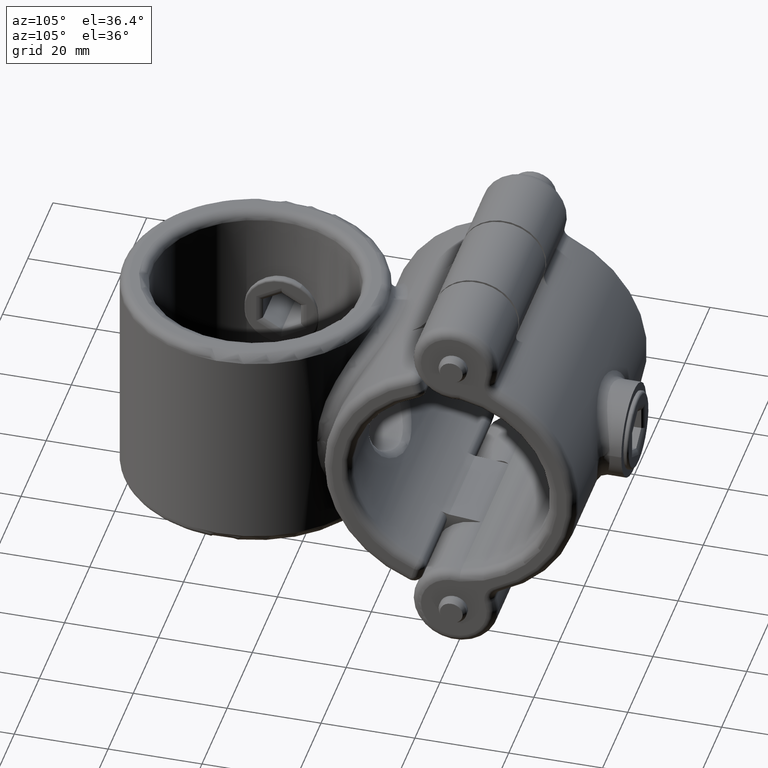
[diagram: clean part render]
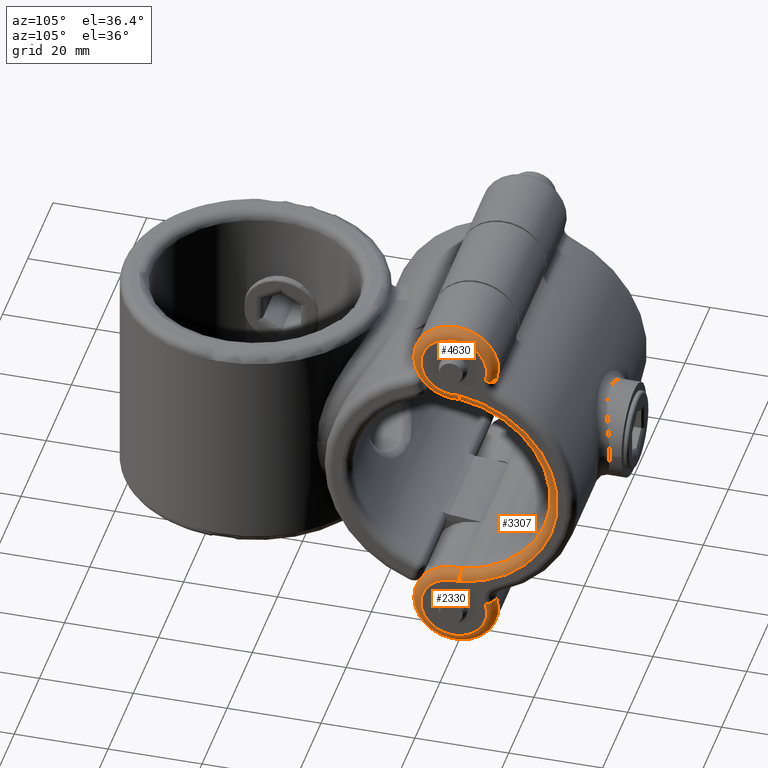
[diagram: same view with one multi-face feature highlighted, each face labeled with its STEP entity id]
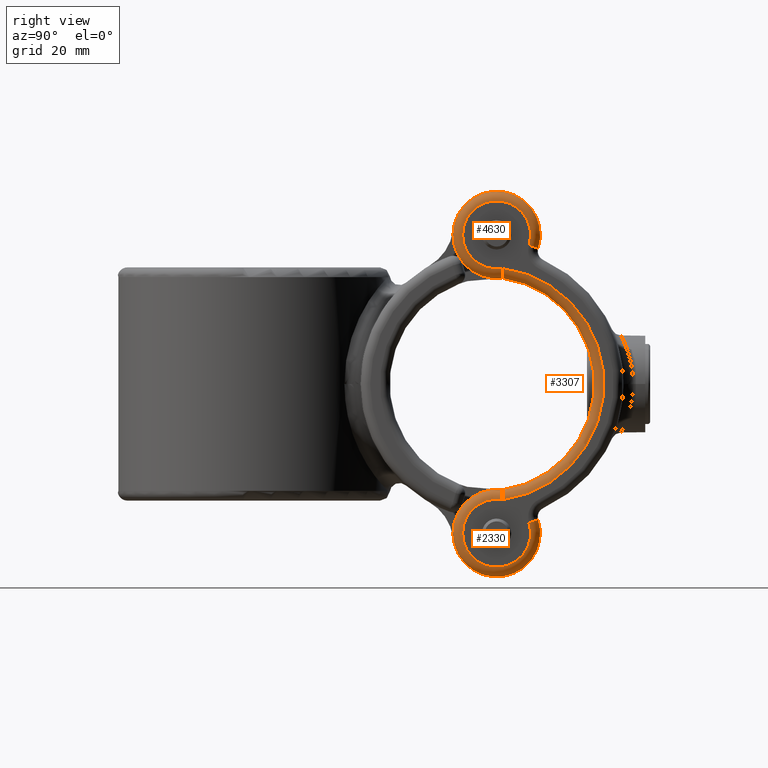
[diagram: same view with one multi-face feature highlighted, each face labeled with its STEP entity id]
A machine part, auxiliary view. The highlighted faces form ONE feature: a constant-radius fillet chain: 3 tangent blend faces with common blend radius 2 mm. The faces share edges in the B-rep.
A second angle (right view) of the same feature is appended — it is thin or edge-on in the first view.
Their STEP definitions:
[1] entity #2330 (Torus):
#242 = ORIENTED_EDGE ( 'NONE', *, *, #5481, .T. ) ;
#260 = CARTESIAN_POINT ( 'NONE',  ( -21.77996268656880119, 11.10374376707723876, -26.99999999999999289 ) ) ;
#286 = CARTESIAN_POINT ( 'NONE',  ( -21.88408805044984717, 11.10412389627863305, -27.64746163702562498 ) ) ;
#366 = DIRECTION ( 'NONE',  ( 1.000000000000000000, 0.000000000000000000, 0.000000000000000000 ) ) ;
#385 = CARTESIAN_POINT ( 'NONE',  ( -23.80046140573448099, 11.08837123321392859, -29.00000000000000000 ) ) ;
#496 = CARTESIAN_POINT ( 'NONE',  ( -30.69999999999999929, 9.906691417764470486, -27.00000000000000711 ) ) ;
#761 = DIRECTION ( 'NONE',  ( 0.3065634216205361806, 0.9518502342933520266, -3.469446951953611822E-15 ) ) ;
#930 = CARTESIAN_POINT ( 'NONE',  ( -22.56144693805259038, 11.10376406390229143, -28.60147898568052938 ) ) ;
#960 = CARTESIAN_POINT ( 'NONE',  ( -22.28146060106532644, 11.10446502960147797, -28.32554001915646325 ) ) ;
#1151 = TOROIDAL_SURFACE ( 'NONE', #2753, 7.000000000000000888, 2.000000000000000000 ) ;
#1276 = AXIS2_PLACEMENT_3D ( 'NONE', #6116, #6015, #761 ) ;
#1328 = CIRCLE ( 'NONE', #6183, 9.000000000000001776 ) ;
#1458 = CARTESIAN_POINT ( 'NONE',  ( -21.79317312684032615, 11.10380026605714576, -27.26324944830099994 ) ) ;
#1516 = CARTESIAN_POINT ( 'NONE',  ( -21.84490963168178723, 11.10398937080740112, -27.51992552766361655 ) ) ;
#1742 = DIRECTION ( 'NONE',  ( 1.000000000000000000, 0.000000000000000000, 0.000000000000000000 ) ) ;
#1777 = CARTESIAN_POINT ( 'NONE',  ( -23.53879131809820535, 11.09365213062194755, -29.00000000000000000 ) ) ;
#2078 = CARTESIAN_POINT ( 'NONE',  ( -22.04853102814784549, 11.10447794447255099, -28.00521407971205790 ) ) ;
#2330 = ADVANCED_FACE ( 'NONE', ( #7050 ), #1151, .T. ) ;
#2375 = VERTEX_POINT ( 'NONE', #6823 ) ;
#2377 = CARTESIAN_POINT ( 'NONE',  ( -23.27125521507883832, 11.09760278651855714, -28.94762279071635902 ) ) ;
#2637 = CARTESIAN_POINT ( 'NONE',  ( -21.77996268656879764, 11.10374376707724053, -27.13275171895752536 ) ) ;
#2753 = AXIS2_PLACEMENT_3D ( 'NONE', #2763, #5044, #5070 ) ;
#2763 = CARTESIAN_POINT ( 'NONE',  ( -30.69999999999999929, 9.906691417764470486, -27.00000000000000711 ) ) ;
#2901 = CIRCLE ( 'NONE', #1276, 2.000000000000001332 ) ;
#3034 = EDGE_CURVE ( 'NONE', #5648, #4283, #5414, .T. ) ;
#3074 = CIRCLE ( 'NONE', #6630, 6.999999999999999112 ) ;
#3269 = CARTESIAN_POINT ( 'NONE',  ( -30.69999999999999929, 9.906691417764470486, -29.00000000000000000 ) ) ;
#3282 = CARTESIAN_POINT ( 'NONE',  ( -21.77996268656880119, 11.10374376707723876, -26.99999999999999289 ) ) ;
#3637 = ORIENTED_EDGE ( 'NONE', *, *, #5772, .F. ) ;
#3856 = CARTESIAN_POINT ( 'NONE',  ( -28.55405604865624980, 16.56964305781793811, -29.00000000000000000 ) ) ;
#4283 = VERTEX_POINT ( 'NONE', #385 ) ;
#4568 = ORIENTED_EDGE ( 'NONE', *, *, #3034, .F. ) ;
#5040 = DIRECTION ( 'NONE',  ( -0.000000000000000000, -0.000000000000000000, -1.000000000000000000 ) ) ;
#5044 = DIRECTION ( 'NONE',  ( 0.000000000000000000, 0.000000000000000000, 1.000000000000000000 ) ) ;
#5070 = DIRECTION ( 'NONE',  ( 1.000000000000000000, 0.000000000000000000, 0.000000000000000000 ) ) ;
#5290 = EDGE_CURVE ( 'NONE', #2375, #5648, #1328, .T. ) ;
#5414 = B_SPLINE_CURVE_WITH_KNOTS ( 'NONE', 3,
 ( #260, #2637, #1458, #1516, #286, #6161, #2078, #6300, #960, #930, #6562, #2377, #1777, #5978 ),
 .UNSPECIFIED., .F., .F.,
 ( 4, 2, 2, 2, 2, 2, 4 ),
 ( 1.769077770938648657E-17, 0.0003925818659723914793, 0.0007851637319447652861, 0.001177745597917139201, 0.001570327463889513008, 0.002355491195834267994, 0.003140654927779022981 ),
 .UNSPECIFIED. ) ;
#5428 = EDGE_LOOP ( 'NONE', ( #242, #3637, #4568, #5982 ) ) ;
#5481 = EDGE_CURVE ( 'NONE', #2375, #6014, #2901, .T. ) ;
#5648 = VERTEX_POINT ( 'NONE', #3282 ) ;
#5772 = EDGE_CURVE ( 'NONE', #4283, #6014, #3074, .T. ) ;
#5978 = CARTESIAN_POINT ( 'NONE',  ( -23.80046140573448099, 11.08837123321392859, -29.00000000000000000 ) ) ;
#5982 = ORIENTED_EDGE ( 'NONE', *, *, #5290, .F. ) ;
#6014 = VERTEX_POINT ( 'NONE', #3856 ) ;
#6015 = DIRECTION ( 'NONE',  ( -0.9518502342933521376, 0.3065634216205361806, -0.000000000000000000 ) ) ;
#6116 = CARTESIAN_POINT ( 'NONE',  ( -28.55405604865624980, 16.56964305781793811, -27.00000000000000355 ) ) ;
#6161 = CARTESIAN_POINT ( 'NONE',  ( -21.98612489799012337, 11.10436857729819238, -27.89016994577315600 ) ) ;
#6183 = AXIS2_PLACEMENT_3D ( 'NONE', #496, #7566, #1742 ) ;
#6300 = CARTESIAN_POINT ( 'NONE',  ( -22.19589050792292184, 11.10452803413894252, -28.22280883711733779 ) ) ;
#6562 = CARTESIAN_POINT ( 'NONE',  ( -22.78667261166648572, 11.10257531369817485, -28.74959606773524357 ) ) ;
#6630 = AXIS2_PLACEMENT_3D ( 'NONE', #3269, #5040, #366 ) ;
#6823 = CARTESIAN_POINT ( 'NONE',  ( -27.94092920541517699, 18.47334352640464061, -27.00000000000001066 ) ) ;
#7050 = FACE_OUTER_BOUND ( 'NONE', #5428, .T. ) ;
#7566 = DIRECTION ( 'NONE',  ( 0.000000000000000000, 0.000000000000000000, 1.000000000000000000 ) ) ;
[2] entity #3307 (Torus):
#77 = VERTEX_POINT ( 'NONE', #1202 ) ;
#92 = CARTESIAN_POINT ( 'NONE',  ( 22.78659675340314550, 11.10257582058586756, -28.74955141218512722 ) ) ;
#172 = CIRCLE ( 'NONE', #1758, 24.00000000000000000 ) ;
#260 = CARTESIAN_POINT ( 'NONE',  ( -21.77996268656880119, 11.10374376707723876, -26.99999999999999289 ) ) ;
#286 = CARTESIAN_POINT ( 'NONE',  ( -21.88408805044984717, 11.10412389627863305, -27.64746163702562498 ) ) ;
#385 = CARTESIAN_POINT ( 'NONE',  ( -23.80046140573448099, 11.08837123321392859, -29.00000000000000000 ) ) ;
#512 = CARTESIAN_POINT ( 'NONE',  ( 0.000000000000000000, 7.999999999999996447, -29.00000000000000000 ) ) ;
#632 = EDGE_CURVE ( 'NONE', #5925, #4283, #172, .T. ) ;
#635 = TOROIDAL_SURFACE ( 'NONE', #1105, 24.00000000000000000, 2.000000000000000000 ) ;
#675 = CARTESIAN_POINT ( 'NONE',  ( 23.80046140573448099, 11.08837123321392859, -29.00000000000000000 ) ) ;
#751 = CARTESIAN_POINT ( 'NONE',  ( 21.88407934211024042, 11.10412386830998166, -27.64743530496540913 ) ) ;
#930 = CARTESIAN_POINT ( 'NONE',  ( -22.56144693805259038, 11.10376406390229143, -28.60147898568052938 ) ) ;
#960 = CARTESIAN_POINT ( 'NONE',  ( -22.28146060106532644, 11.10446502960147797, -28.32554001915646325 ) ) ;
#1105 = AXIS2_PLACEMENT_3D ( 'NONE', #1854, #6077, #1996 ) ;
#1202 = CARTESIAN_POINT ( 'NONE',  ( 21.77996268656880119, 11.10374376707724053, -26.99999999999999289 ) ) ;
#1278 = CARTESIAN_POINT ( 'NONE',  ( 22.19585697826187243, 11.10452804533497151, -28.22276510130126681 ) ) ;
#1302 = CARTESIAN_POINT ( 'NONE',  ( 22.56138682105155269, 11.10376431375651940, -28.60143172919928745 ) ) ;
#1458 = CARTESIAN_POINT ( 'NONE',  ( -21.79317312684032615, 11.10380026605714576, -27.26324944830099994 ) ) ;
#1516 = CARTESIAN_POINT ( 'NONE',  ( -21.84490963168178723, 11.10398937080740112, -27.51992552766361655 ) ) ;
#1668 = CARTESIAN_POINT ( 'NONE',  ( 23.80046140573448099, 11.08837123321392859, -29.00000000000000000 ) ) ;
#1758 = AXIS2_PLACEMENT_3D ( 'NONE', #512, #2268, #5840 ) ;
#1777 = CARTESIAN_POINT ( 'NONE',  ( -23.53879131809820535, 11.09365213062194755, -29.00000000000000000 ) ) ;
#1854 = CARTESIAN_POINT ( 'NONE',  ( 0.000000000000000000, 7.999999999999996447, -27.00000000000000711 ) ) ;
#1880 = FACE_OUTER_BOUND ( 'NONE', #6441, .T. ) ;
#1901 = CARTESIAN_POINT ( 'NONE',  ( 21.98610810923255698, 11.10436854412384911, -27.89013562816889547 ) ) ;
#1996 = DIRECTION ( 'NONE',  ( 1.000000000000000000, 0.000000000000000000, 0.000000000000000000 ) ) ;
#2078 = CARTESIAN_POINT ( 'NONE',  ( -22.04853102814784549, 11.10447794447255099, -28.00521407971205790 ) ) ;
#2268 = DIRECTION ( 'NONE',  ( 0.000000000000000000, 0.000000000000000000, 1.000000000000000000 ) ) ;
#2377 = CARTESIAN_POINT ( 'NONE',  ( -23.27125521507883832, 11.09760278651855714, -28.94762279071635902 ) ) ;
#2539 = EDGE_CURVE ( 'NONE', #5925, #77, #3652, .T. ) ;
#2637 = CARTESIAN_POINT ( 'NONE',  ( -21.77996268656879764, 11.10374376707724053, -27.13275171895752536 ) ) ;
#3034 = EDGE_CURVE ( 'NONE', #5648, #4283, #5414, .T. ) ;
#3110 = CARTESIAN_POINT ( 'NONE',  ( 21.84490425745891429, 11.10398935206406534, -27.51990432942688969 ) ) ;
#3122 = ORIENTED_EDGE ( 'NONE', *, *, #6211, .F. ) ;
#3282 = CARTESIAN_POINT ( 'NONE',  ( -21.77996268656880119, 11.10374376707723876, -26.99999999999999289 ) ) ;
#3307 = ADVANCED_FACE ( 'NONE', ( #1880 ), #635, .T. ) ;
#3652 = B_SPLINE_CURVE_WITH_KNOTS ( 'NONE', 3,
 ( #675, #4862, #4248, #92, #1302, #4274, #1278, #6613, #1901, #751, #3110, #5463, #7226, #7157 ),
 .UNSPECIFIED., .F., .F.,
 ( 4, 2, 2, 2, 2, 2, 4 ),
 ( -1.648903693642393169E-05, 0.0007749199252810284443, 0.001566328887498480817, 0.001962033368607203534, 0.002357737849715926034, 0.002753442330824648968, 0.003149146811933371468 ),
 .UNSPECIFIED. ) ;
#3754 = ORIENTED_EDGE ( 'NONE', *, *, #632, .F. ) ;
#4170 = CIRCLE ( 'NONE', #6537, 22.00000000000000355 ) ;
#4191 = CARTESIAN_POINT ( 'NONE',  ( 0.000000000000000000, 7.999999999999996447, -27.00000000000000711 ) ) ;
#4248 = CARTESIAN_POINT ( 'NONE',  ( 23.27114943958180504, 11.09760414335749168, -28.94759321574704103 ) ) ;
#4254 = DIRECTION ( 'NONE',  ( 1.000000000000000000, 0.000000000000000000, 0.000000000000000000 ) ) ;
#4274 = CARTESIAN_POINT ( 'NONE',  ( 22.28142069597912922, 11.10446507981455255, -28.32549469292823474 ) ) ;
#4283 = VERTEX_POINT ( 'NONE', #385 ) ;
#4353 = ORIENTED_EDGE ( 'NONE', *, *, #2539, .T. ) ;
#4862 = CARTESIAN_POINT ( 'NONE',  ( 23.53670998157401684, 11.09369413513500646, -29.00000000000000711 ) ) ;
#5414 = B_SPLINE_CURVE_WITH_KNOTS ( 'NONE', 3,
 ( #260, #2637, #1458, #1516, #286, #6161, #2078, #6300, #960, #930, #6562, #2377, #1777, #5978 ),
 .UNSPECIFIED., .F., .F.,
 ( 4, 2, 2, 2, 2, 2, 4 ),
 ( 1.769077770938648657E-17, 0.0003925818659723914793, 0.0007851637319447652861, 0.001177745597917139201, 0.001570327463889513008, 0.002355491195834267994, 0.003140654927779022981 ),
 .UNSPECIFIED. ) ;
#5463 = CARTESIAN_POINT ( 'NONE',  ( 21.79317203708308881, 11.10380026117353225, -27.26323857664048944 ) ) ;
#5648 = VERTEX_POINT ( 'NONE', #3282 ) ;
#5840 = DIRECTION ( 'NONE',  ( 1.000000000000000000, 0.000000000000000000, 0.000000000000000000 ) ) ;
#5925 = VERTEX_POINT ( 'NONE', #1668 ) ;
#5978 = CARTESIAN_POINT ( 'NONE',  ( -23.80046140573448099, 11.08837123321392859, -29.00000000000000000 ) ) ;
#6077 = DIRECTION ( 'NONE',  ( 0.000000000000000000, 0.000000000000000000, 1.000000000000000000 ) ) ;
#6161 = CARTESIAN_POINT ( 'NONE',  ( -21.98612489799012337, 11.10436857729819238, -27.89016994577315600 ) ) ;
#6211 = EDGE_CURVE ( 'NONE', #5648, #77, #4170, .T. ) ;
#6300 = CARTESIAN_POINT ( 'NONE',  ( -22.19589050792292184, 11.10452803413894252, -28.22280883711733779 ) ) ;
#6441 = EDGE_LOOP ( 'NONE', ( #7041, #3754, #4353, #3122 ) ) ;
#6537 = AXIS2_PLACEMENT_3D ( 'NONE', #4191, #6569, #4254 ) ;
#6562 = CARTESIAN_POINT ( 'NONE',  ( -22.78667261166648572, 11.10257531369817485, -28.74959606773524357 ) ) ;
#6569 = DIRECTION ( 'NONE',  ( -0.000000000000000000, -0.000000000000000000, -1.000000000000000000 ) ) ;
#6613 = CARTESIAN_POINT ( 'NONE',  ( 22.04850932427700982, 11.10447791449334431, -28.00517625412441802 ) ) ;
#7041 = ORIENTED_EDGE ( 'NONE', *, *, #3034, .T. ) ;
#7157 = CARTESIAN_POINT ( 'NONE',  ( 21.77996268656880119, 11.10374376707724053, -26.99999999999999289 ) ) ;
#7226 = CARTESIAN_POINT ( 'NONE',  ( 21.77996268656879408, 11.10374376707723698, -27.13274619015901479 ) ) ;
[3] entity #4630 (Torus):
#77 = VERTEX_POINT ( 'NONE', #1202 ) ;
#92 = CARTESIAN_POINT ( 'NONE',  ( 22.78659675340314550, 11.10257582058586756, -28.74955141218512722 ) ) ;
#266 = DIRECTION ( 'NONE',  ( 1.000000000000000000, 0.000000000000000000, 0.000000000000000000 ) ) ;
#628 = DIRECTION ( 'NONE',  ( 0.3065634216205365137, -0.9518502342933521376, 0.000000000000000000 ) ) ;
#675 = CARTESIAN_POINT ( 'NONE',  ( 23.80046140573448099, 11.08837123321392859, -29.00000000000000000 ) ) ;
#751 = CARTESIAN_POINT ( 'NONE',  ( 21.88407934211024042, 11.10412386830998166, -27.64743530496540913 ) ) ;
#1202 = CARTESIAN_POINT ( 'NONE',  ( 21.77996268656880119, 11.10374376707724053, -26.99999999999999289 ) ) ;
#1206 = AXIS2_PLACEMENT_3D ( 'NONE', #2081, #7405, #266 ) ;
#1278 = CARTESIAN_POINT ( 'NONE',  ( 22.19585697826187243, 11.10452804533497151, -28.22276510130126681 ) ) ;
#1302 = CARTESIAN_POINT ( 'NONE',  ( 22.56138682105155269, 11.10376431375651940, -28.60143172919928745 ) ) ;
#1386 = CARTESIAN_POINT ( 'NONE',  ( 28.55405604865624980, 16.56964305781793811, -27.00000000000000711 ) ) ;
#1547 = DIRECTION ( 'NONE',  ( 1.000000000000000000, 0.000000000000000000, 0.000000000000000000 ) ) ;
#1668 = CARTESIAN_POINT ( 'NONE',  ( 23.80046140573448099, 11.08837123321392859, -29.00000000000000000 ) ) ;
#1842 = CIRCLE ( 'NONE', #2710, 1.999999999999999334 ) ;
#1901 = CARTESIAN_POINT ( 'NONE',  ( 21.98610810923255698, 11.10436854412384911, -27.89013562816889547 ) ) ;
#2081 = CARTESIAN_POINT ( 'NONE',  ( 30.69999999999999929, 9.906691417764470486, -27.00000000000000711 ) ) ;
#2539 = EDGE_CURVE ( 'NONE', #5925, #77, #3652, .T. ) ;
#2563 = EDGE_LOOP ( 'NONE', ( #2814, #4359, #6496, #4825 ) ) ;
#2710 = AXIS2_PLACEMENT_3D ( 'NONE', #1386, #5370, #628 ) ;
#2814 = ORIENTED_EDGE ( 'NONE', *, *, #3649, .T. ) ;
#3110 = CARTESIAN_POINT ( 'NONE',  ( 21.84490425745891429, 11.10398935206406534, -27.51990432942688969 ) ) ;
#3195 = AXIS2_PLACEMENT_3D ( 'NONE', #5080, #7336, #1547 ) ;
#3291 = CARTESIAN_POINT ( 'NONE',  ( 28.55405604865624980, 16.56964305781793811, -29.00000000000000000 ) ) ;
#3649 = EDGE_CURVE ( 'NONE', #7104, #6460, #1842, .T. ) ;
#3652 = B_SPLINE_CURVE_WITH_KNOTS ( 'NONE', 3,
 ( #675, #4862, #4248, #92, #1302, #4274, #1278, #6613, #1901, #751, #3110, #5463, #7226, #7157 ),
 .UNSPECIFIED., .F., .F.,
 ( 4, 2, 2, 2, 2, 2, 4 ),
 ( -1.648903693642393169E-05, 0.0007749199252810284443, 0.001566328887498480817, 0.001962033368607203534, 0.002357737849715926034, 0.002753442330824648968, 0.003149146811933371468 ),
 .UNSPECIFIED. ) ;
#4192 = EDGE_CURVE ( 'NONE', #77, #6460, #7498, .T. ) ;
#4248 = CARTESIAN_POINT ( 'NONE',  ( 23.27114943958180504, 11.09760414335749168, -28.94759321574704103 ) ) ;
#4274 = CARTESIAN_POINT ( 'NONE',  ( 22.28142069597912922, 11.10446507981455255, -28.32549469292823474 ) ) ;
#4359 = ORIENTED_EDGE ( 'NONE', *, *, #4192, .F. ) ;
#4588 = CARTESIAN_POINT ( 'NONE',  ( 30.69999999999999929, 9.906691417764470486, -27.00000000000000711 ) ) ;
#4629 = EDGE_CURVE ( 'NONE', #7104, #5925, #5654, .T. ) ;
#4630 = ADVANCED_FACE ( 'NONE', ( #7593 ), #5848, .T. ) ;
#4825 = ORIENTED_EDGE ( 'NONE', *, *, #4629, .F. ) ;
#4862 = CARTESIAN_POINT ( 'NONE',  ( 23.53670998157401684, 11.09369413513500646, -29.00000000000000711 ) ) ;
#5080 = CARTESIAN_POINT ( 'NONE',  ( 30.69999999999999929, 9.906691417764470486, -29.00000000000000000 ) ) ;
#5141 = DIRECTION ( 'NONE',  ( 0.000000000000000000, 0.000000000000000000, 1.000000000000000000 ) ) ;
#5370 = DIRECTION ( 'NONE',  ( 0.9518502342933521376, 0.3065634216205361806, 0.000000000000000000 ) ) ;
#5463 = CARTESIAN_POINT ( 'NONE',  ( 21.79317203708308881, 11.10380026117353225, -27.26323857664048944 ) ) ;
#5654 = CIRCLE ( 'NONE', #3195, 6.999999999999999112 ) ;
#5848 = TOROIDAL_SURFACE ( 'NONE', #1206, 7.000000000000000888, 2.000000000000000000 ) ;
#5925 = VERTEX_POINT ( 'NONE', #1668 ) ;
#6460 = VERTEX_POINT ( 'NONE', #7187 ) ;
#6496 = ORIENTED_EDGE ( 'NONE', *, *, #2539, .F. ) ;
#6551 = AXIS2_PLACEMENT_3D ( 'NONE', #4588, #5141, #6869 ) ;
#6613 = CARTESIAN_POINT ( 'NONE',  ( 22.04850932427700982, 11.10447791449334431, -28.00517625412441802 ) ) ;
#6869 = DIRECTION ( 'NONE',  ( 1.000000000000000000, 0.000000000000000000, 0.000000000000000000 ) ) ;
#7104 = VERTEX_POINT ( 'NONE', #3291 ) ;
#7157 = CARTESIAN_POINT ( 'NONE',  ( 21.77996268656880119, 11.10374376707724053, -26.99999999999999289 ) ) ;
#7187 = CARTESIAN_POINT ( 'NONE',  ( 27.94092920541517699, 18.47334352640464061, -27.00000000000001066 ) ) ;
#7226 = CARTESIAN_POINT ( 'NONE',  ( 21.77996268656879408, 11.10374376707723698, -27.13274619015901479 ) ) ;
#7336 = DIRECTION ( 'NONE',  ( -0.000000000000000000, -0.000000000000000000, -1.000000000000000000 ) ) ;
#7405 = DIRECTION ( 'NONE',  ( 0.000000000000000000, 0.000000000000000000, 1.000000000000000000 ) ) ;
#7498 = CIRCLE ( 'NONE', #6551, 9.000000000000001776 ) ;
#7593 = FACE_OUTER_BOUND ( 'NONE', #2563, .T. ) ;